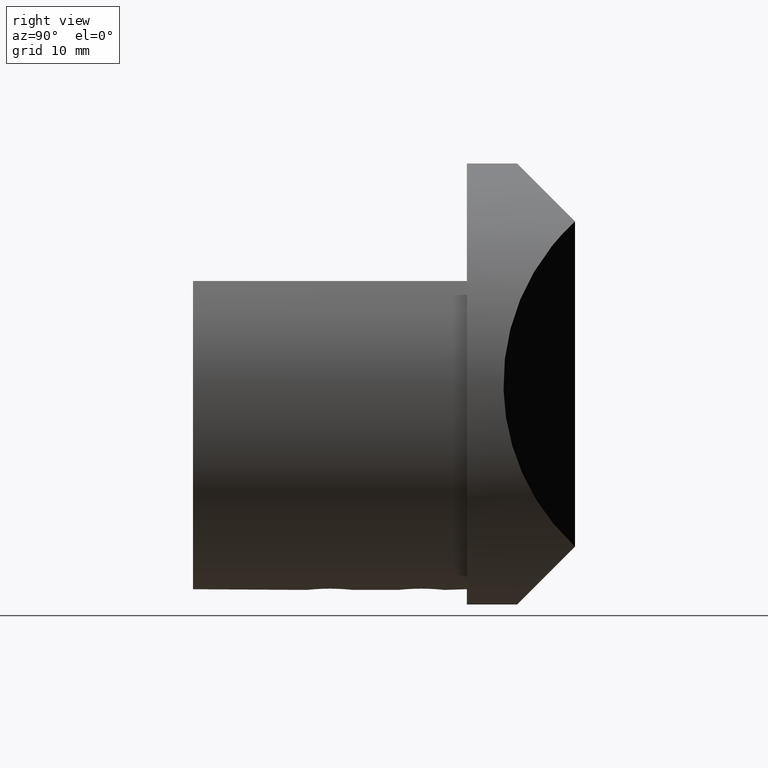
[diagram: clean part render]
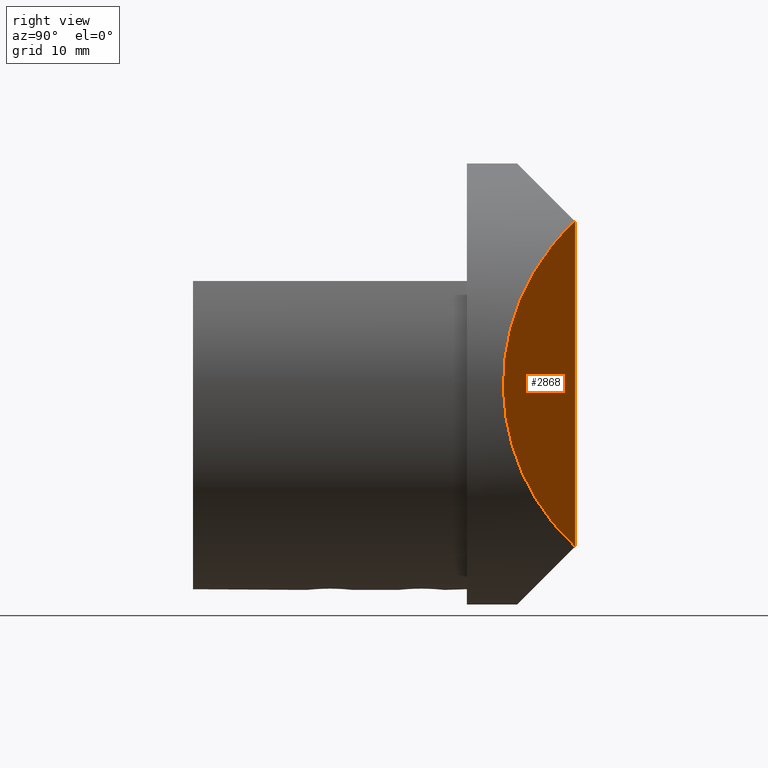
[diagram: same view with one face highlighted and labeled with its STEP entity id]
A machine part, right view. The second image highlights one B-rep face of the part: STEP entity #2868.
In plain terms, the highlighted planar face has unit normal (-0.7071, -0.7071, 0).
Its self-contained STEP definition (entity closure, byte-faithful):
#591 = VERTEX_POINT ( 'NONE', #8316 ) ;
#766 = VERTEX_POINT ( 'NONE', #3629 ) ;
#1084 = FACE_OUTER_BOUND ( 'NONE', #10270, .T. ) ;
#1205 = PLANE ( 'NONE',  #5145 ) ;
#2452 = ORIENTED_EDGE ( 'NONE', *, *, #5596, .T. ) ;
#2868 = ADVANCED_FACE ( 'NONE', ( #1084 ), #1205, .F. ) ;
#3629 = CARTESIAN_POINT ( 'NONE',  ( 16.31031575414774400, 11.84000000000000000, 17.80999999999999200 ) ) ;
#3877 =( BOUNDED_CURVE ( )  B_SPLINE_CURVE ( 3, ( #10982, #11125, #5082, #7107 ),
 .UNSPECIFIED., .F., .T. ) 
 B_SPLINE_CURVE_WITH_KNOTS ( ( 4, 4 ),
 ( 5.453862590081278900, 7.112508024277893500 ),
 .UNSPECIFIED. ) 
 CURVE ( )  GEOMETRIC_REPRESENTATION_ITEM ( )  RATIONAL_B_SPLINE_CURVE ( ( 1.000000000000000000, 0.7835835956976602300, 0.7835835956976602300, 1.000000000000000000 ) ) 
 REPRESENTATION_ITEM ( '' )  );
#4153 = DIRECTION ( 'NONE',  ( -0.7071210206091918000, -0.7070925414771498400, 0.0000000000000000000 ) ) ;
#4859 = CARTESIAN_POINT ( 'NONE',  ( 14.07548632594323300, 14.07491943905690200, -24.14999999999999900 ) ) ;
#5082 = CARTESIAN_POINT ( 'NONE',  ( 27.48497038005763200, 0.6648952993885041100, 7.576302897690172100 ) ) ;
#5145 = AXIS2_PLACEMENT_3D ( 'NONE', #4859, #4153, #9920 ) ;
#5596 = EDGE_CURVE ( 'NONE', #591, #766, #8016, .T. ) ;
#5944 = EDGE_CURVE ( 'NONE', #591, #766, #3877, .T. ) ;
#7107 = CARTESIAN_POINT ( 'NONE',  ( 16.31031575414774400, 11.84000000000000000, 17.80999999999999200 ) ) ;
#8016 = LINE ( 'NONE', #10305, #10388 ) ;
#8316 = CARTESIAN_POINT ( 'NONE',  ( 16.31031575414774400, 11.84000000000000000, -17.81000000000000200 ) ) ;
#9920 = DIRECTION ( 'NONE',  ( 0.7070925414771498400, -0.7071210206091918000, 0.0000000000000000000 ) ) ;
#10270 = EDGE_LOOP ( 'NONE', ( #12726, #2452 ) ) ;
#10305 = CARTESIAN_POINT ( 'NONE',  ( 16.31031575414774400, 11.84000000000000000, -24.14999999999999900 ) ) ;
#10344 = DIRECTION ( 'NONE',  ( -0.0000000000000000000, -0.0000000000000000000, 1.000000000000000000 ) ) ;
#10388 = VECTOR ( 'NONE', #10344, 1000.000000000000000 ) ;
#10982 = CARTESIAN_POINT ( 'NONE',  ( 16.31031575414774400, 11.84000000000000000, -17.81000000000000200 ) ) ;
#11125 = CARTESIAN_POINT ( 'NONE',  ( 27.48497038005763200, 0.6648952993885074400, -7.576302897690179200 ) ) ;
#12726 = ORIENTED_EDGE ( 'NONE', *, *, #5944, .F. ) ;